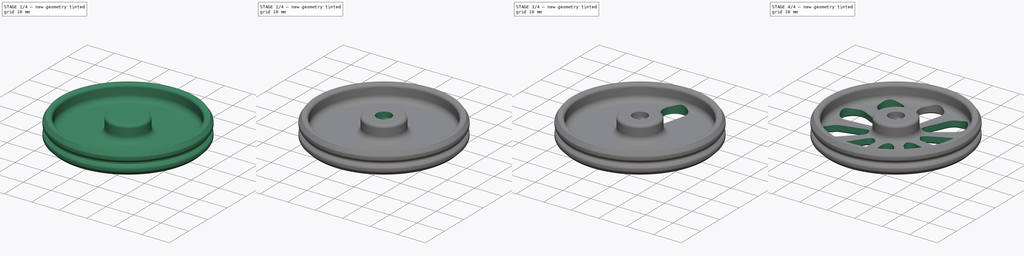
[diagram: build sequence overview — one tinted view per stage of 4, left to right]
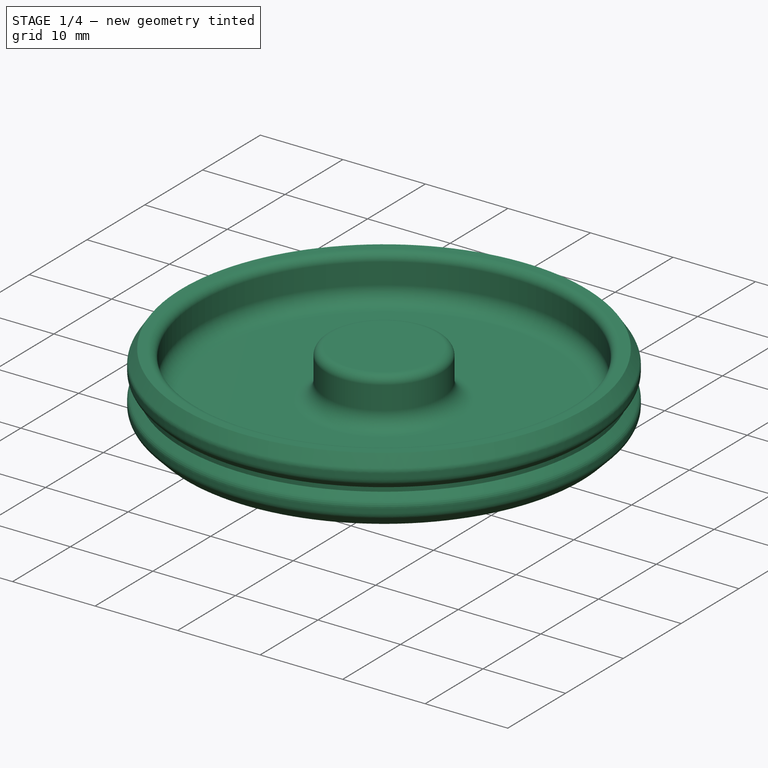
[diagram: stage 1 of 4 — iso view after this stage's code; geometry added in this stage tinted green]
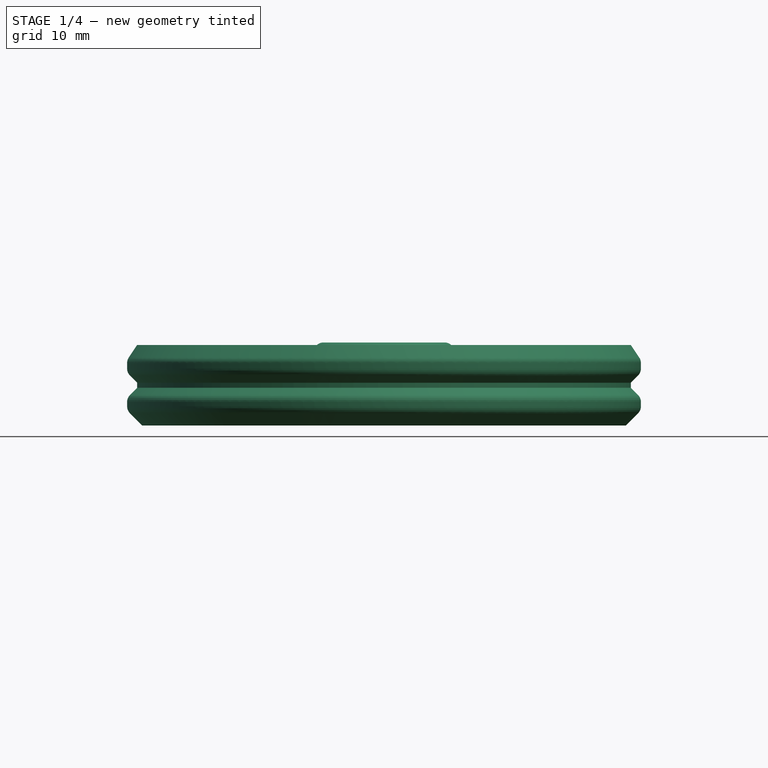
[diagram: stage 1 of 4 — front view after this stage's code; geometry added in this stage tinted green]
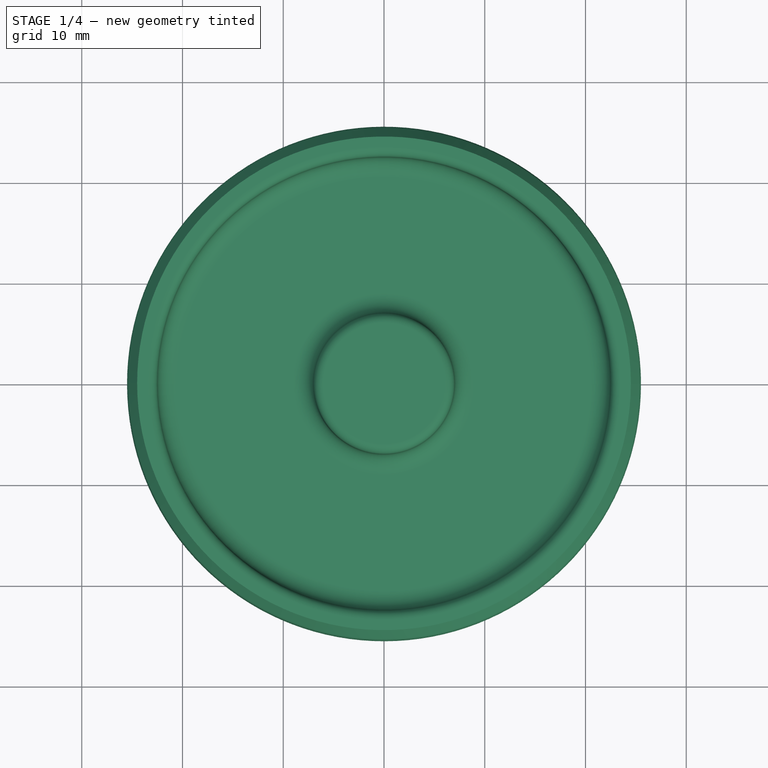
[diagram: stage 1 of 4 — top view after this stage's code; geometry added in this stage tinted green]
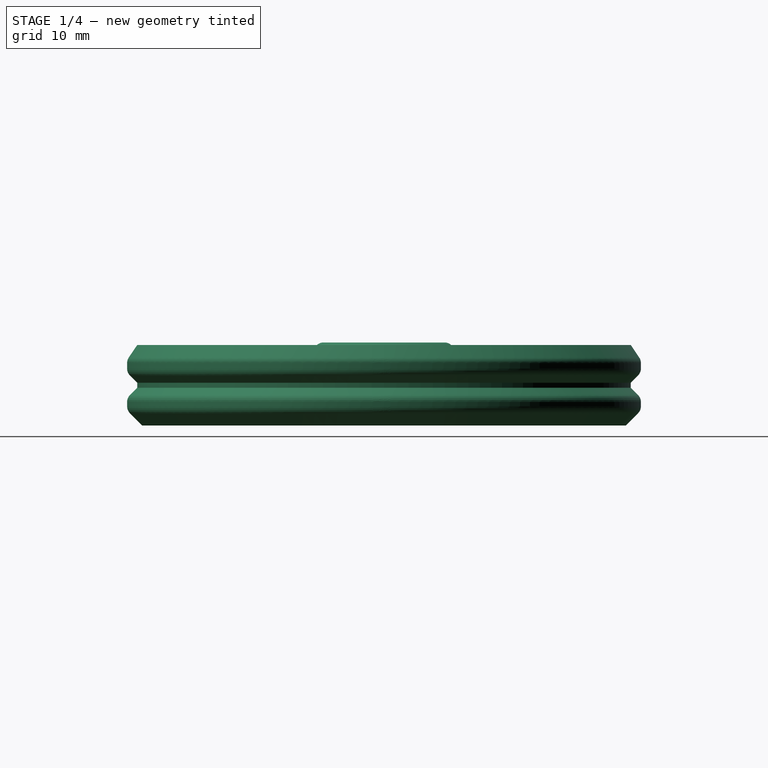
[diagram: stage 1 of 4 — right view after this stage's code; geometry added in this stage tinted green]
FCSTD DOCUMENT  (FreeCAD 0.16R6712 (Git))
Label: rueda_d
License: All rights reserved
LicenseURL: http://en.wikipedia.org/wiki/All_rights_reserved
objects: Sketcher::SketchObject×4, PartDesign::Pocket×3, PartDesign::Fillet×2, Part::Cylinder×1, PartDesign::Revolution×1, Part::Cut×1, PartDesign::PolarPattern×1, Part::Chamfer×1
note: 18 computed .brp shape members not serialized (recipe doc carries the construction recipe); baked Part::Feature solids carry a one-line shape summary decoded from their .brp

FEATURE [PartDesign::Revolution] Revolution
  Angle = 360
  Axis = (0,0,1)
  Base = (0,0,0)
  Placement = pos=(0,0,0) rot=(1,0,0;1.5708rad)
  ReferenceAxis = -> Sketch [V_Axis]
  Reversed = true
  Sketch = -> Sketch
FEATURE [PartDesign::Fillet] Fillet
  Base = -> Revolution [Edge5,Edge7,Edge13,Edge15]
  Placement = pos=(0,0,0) rot=(1,0,0;1.5708rad)
  Radius = 1
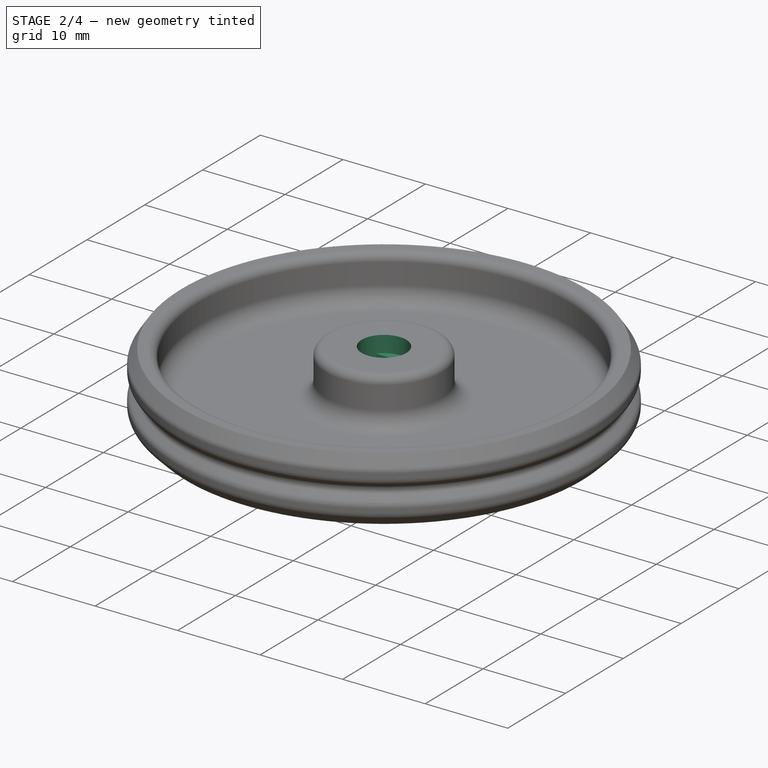
[diagram: stage 2 of 4 — iso view after this stage's code; geometry added in this stage tinted green]
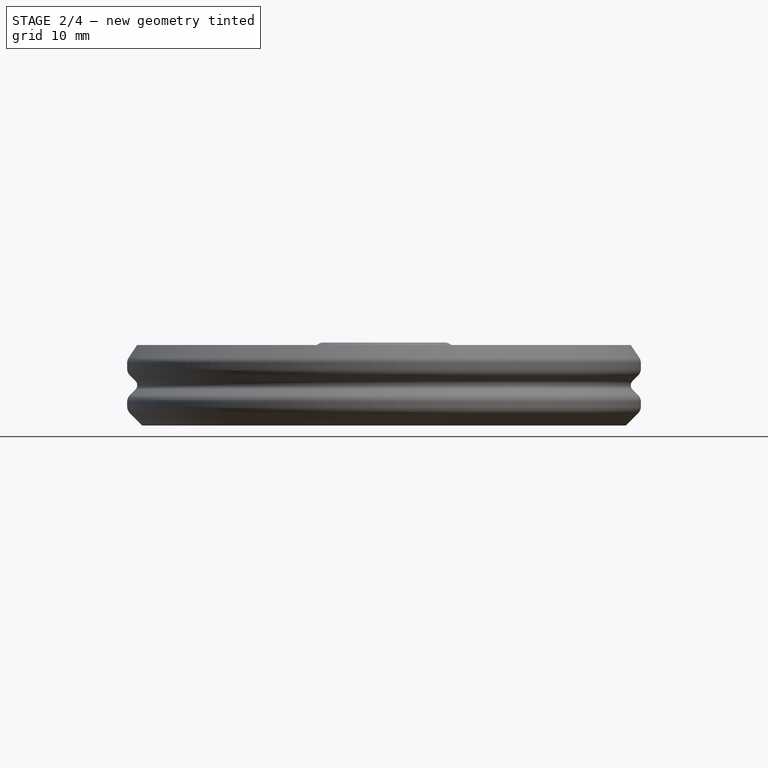
[diagram: stage 2 of 4 — front view after this stage's code; geometry added in this stage tinted green]
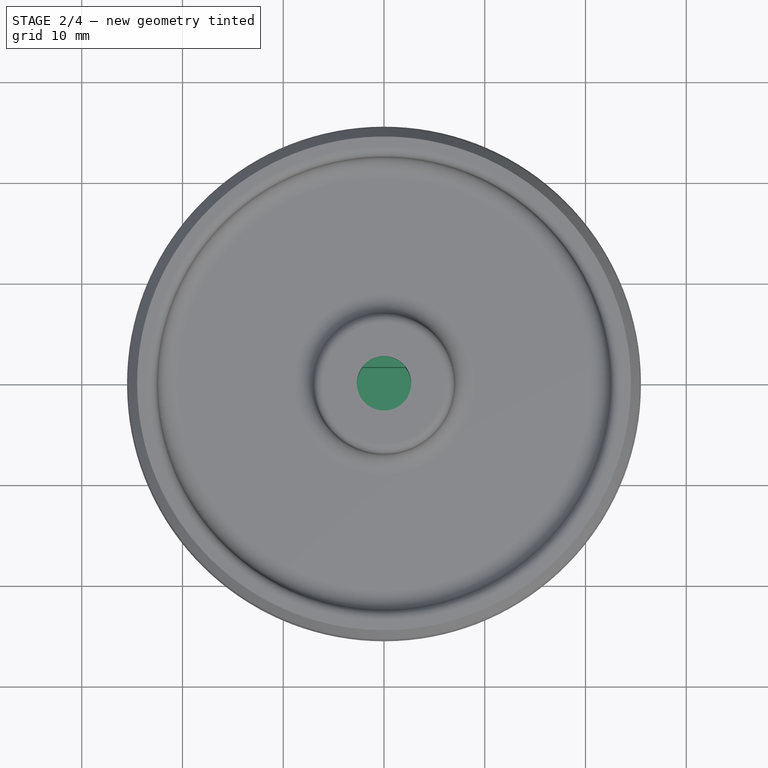
[diagram: stage 2 of 4 — top view after this stage's code; geometry added in this stage tinted green]
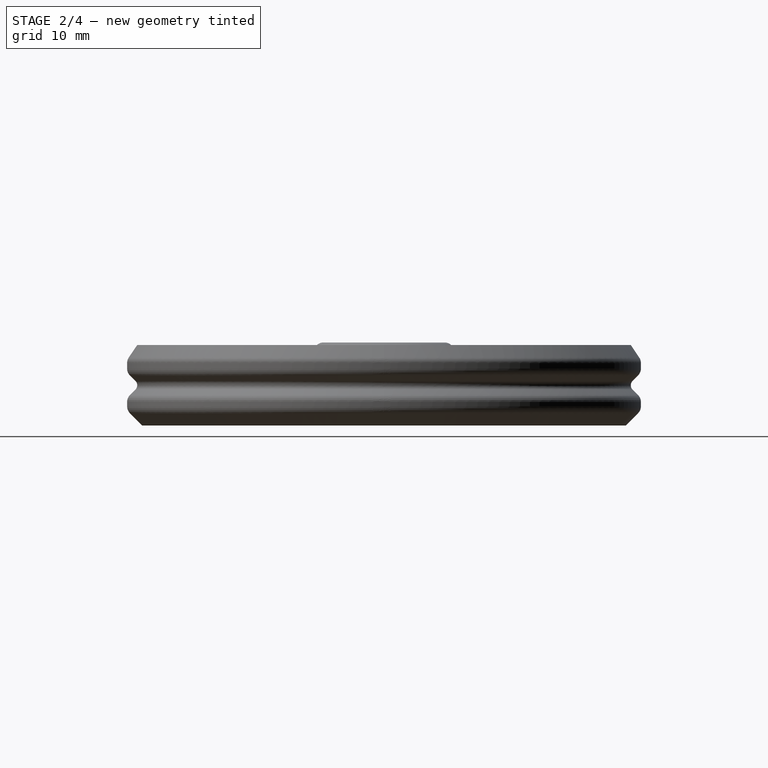
[diagram: stage 2 of 4 — right view after this stage's code; geometry added in this stage tinted green]
FEATURE [PartDesign::Fillet] Fillet001
  Base = -> Fillet [Edge12,Edge11]
  Placement = pos=(0,0,0) rot=(1,0,0;1.5708rad)
  Radius = 0.5
FEATURE [Sketcher::SketchObject] Sketch001
  Placement = pos=(0,0,8.25) rot=(0,0,1;3.14159rad)
  Support = -> Fillet001 [Face23]
  sketch-geometry (4):
    g0: LineSegment StartX=-2.13717 StartY=1.65 StartZ=0 EndX=2.13717 EndY=1.65 EndZ=0
    g1: LineSegment StartX=-2.13717 StartY=-1.65 StartZ=0 EndX=2.13717 EndY=-1.65 EndZ=0
    g2: ArcOfCircle CenterX=0 CenterY=0 CenterZ=0 NormalX=0 NormalY=0 NormalZ=1 Radius=2.7 StartAngle=2.48413 EndAngle=3.79906
    g3: ArcOfCircle CenterX=0 CenterY=0 CenterZ=0 NormalX=0 NormalY=0 NormalZ=1 Radius=2.7 StartAngle=5.62572 EndAngle=6.94065
  constraints (12):
    c: Horizontal(g0)
    c: Horizontal(g1)
    c: Coincident(g2,g-1)
    c: Coincident(g2,g0)
    c: Coincident(g2,g1)
    c: Coincident(g3,g-1)
    c: Coincident(g3,g0)
    c: Coincident(g3,g1)
    c: Equal(g2,g3)
    c: Radius(g2) = 2.7
    c: Symmetric(g0,g1,g-1)
    c: DistanceY(g-1,g0) = 1.65
FEATURE [PartDesign::Pocket] Pocket
  Length = 8
  Placement = pos=(0,0,0) rot=(1,0,0;1.5708rad)
  Sketch = -> Sketch001
  Type = 0
FEATURE [Sketcher::SketchObject] Sketch002
  ExternalGeometry = -> [Pocket]
  Placement = pos=(0,0,8.25) rot=(0,0,1;3.14159rad)
  Support = -> Pocket [Face23]
  sketch-geometry (1):
    g0: Circle CenterX=0 CenterY=0 CenterZ=0 NormalX=0 NormalY=0 NormalZ=1 Radius=2.7
  constraints (2):
    c: Coincident(g0,g-1)
    c: PointOnObject(g-3,g0)
FEATURE [PartDesign::Pocket] Pocket001
  Length = 2
  Placement = pos=(0,0,0) rot=(1,0,0;1.5708rad)
  Sketch = -> Sketch002
  Type = 0
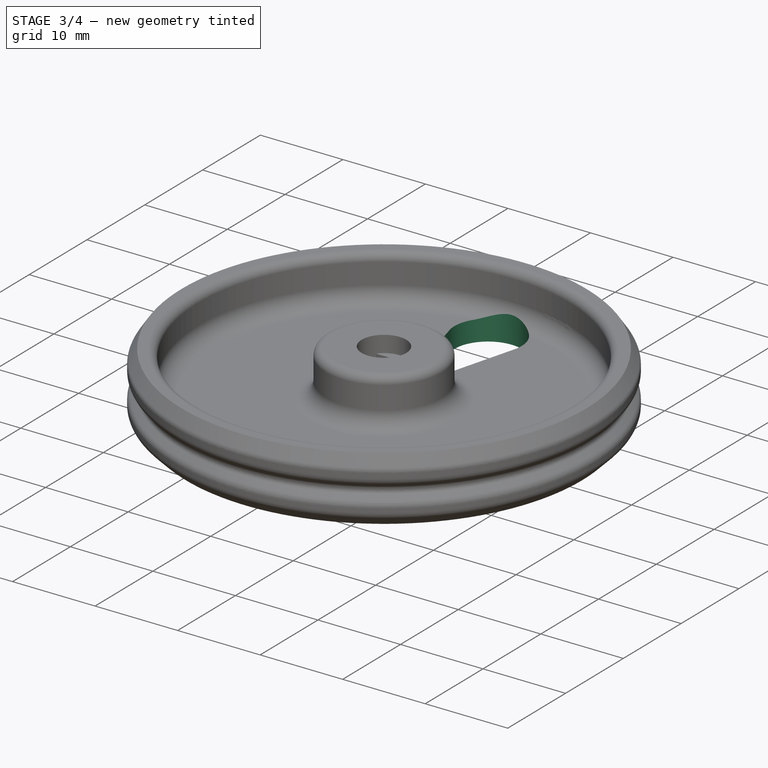
[diagram: stage 3 of 4 — iso view after this stage's code; geometry added in this stage tinted green]
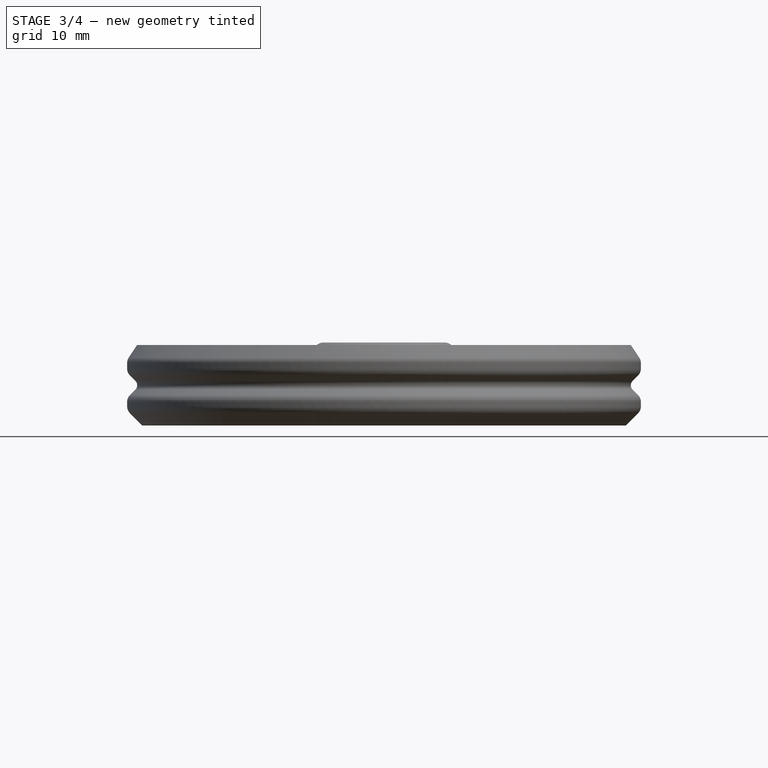
[diagram: stage 3 of 4 — front view after this stage's code; geometry added in this stage tinted green]
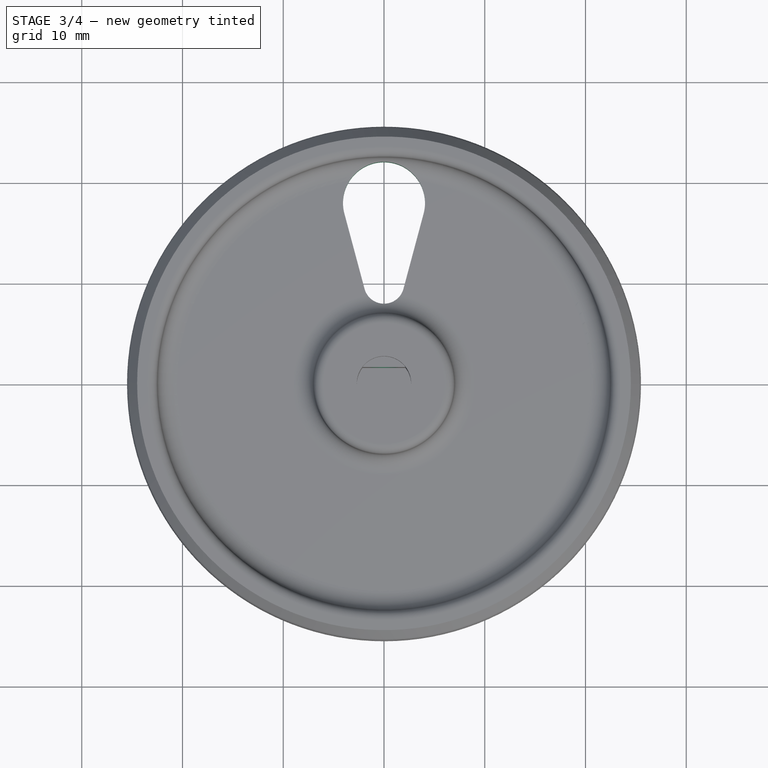
[diagram: stage 3 of 4 — top view after this stage's code; geometry added in this stage tinted green]
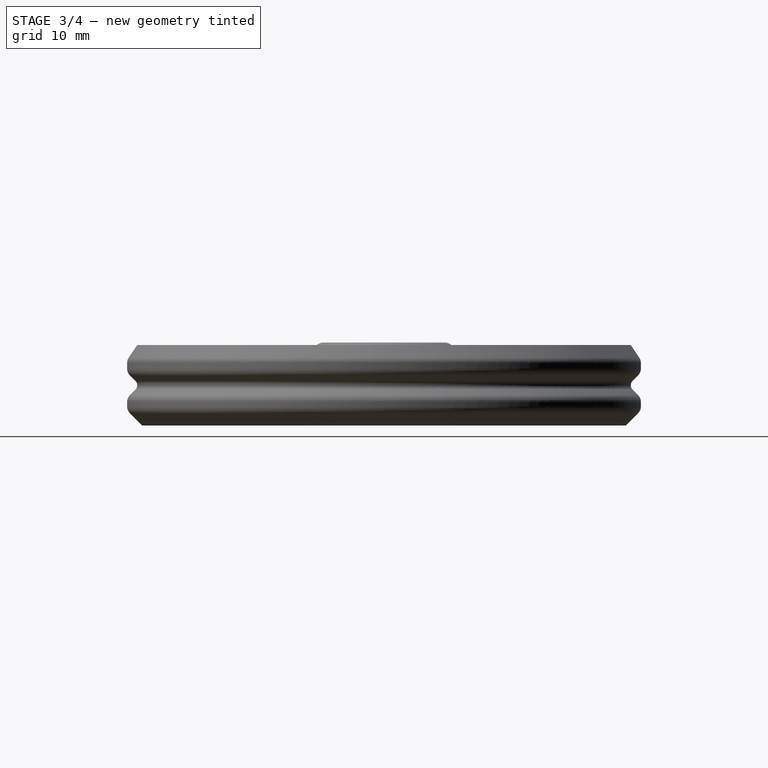
[diagram: stage 3 of 4 — right view after this stage's code; geometry added in this stage tinted green]
FEATURE [Sketcher::SketchObject] Sketch
  Placement = pos=(0,0,0) rot=(1,0,0;1.5708rad)
  sketch-geometry (18):
    g0: LineSegment StartX=24 StartY=0 StartZ=0 EndX=25.5 EndY=1.5 EndZ=0
    g1: LineSegment StartX=25.5 StartY=1.5 StartZ=0 EndX=25.5 EndY=2.75 EndZ=0
    g2: LineSegment StartX=25.5 StartY=2.75 StartZ=0 EndX=24.5 EndY=3.75 EndZ=0
    g3: LineSegment StartX=24.5 StartY=3.75 StartZ=0 EndX=24.5 EndY=4.25 EndZ=0
    g4: LineSegment StartX=24.5 StartY=4.25 StartZ=0 EndX=25.5 EndY=5.25 EndZ=0
    g5: LineSegment StartX=25.5 StartY=5.25 StartZ=0 EndX=25.5 EndY=6.5 EndZ=0
    g6: LineSegment StartX=25.5 StartY=6.5 StartZ=0 EndX=24.5 EndY=8 EndZ=0
    g7: LineSegment StartX=24 StartY=0 StartZ=0 EndX=0 EndY=0 EndZ=0
    g8: LineSegment StartX=0 StartY=0 StartZ=0 EndX=0 EndY=8.25 EndZ=0
    g9: LineSegment StartX=0 StartY=8.25 StartZ=0 EndX=6 EndY=8.25 EndZ=0
    g10: ArcOfCircle CenterX=6 CenterY=7.25 CenterZ=0 NormalX=0 NormalY=0 NormalZ=1 Radius=1 StartAngle=6.28317 EndAngle=7.85398
    g11: ArcOfCircle CenterX=9 CenterY=4.5 CenterZ=0 NormalX=0 NormalY=0 NormalZ=1 Radius=2 StartAngle=3.14159 EndAngle=4.71239
    g12: ArcOfCircle CenterX=20.5 CenterY=4.5 CenterZ=0 NormalX=0 NormalY=0 NormalZ=1 Radius=2 StartAngle=4.71239 EndAngle=6.28319
    g13: ArcOfCircle CenterX=23.5 CenterY=7 CenterZ=0 NormalX=0 NormalY=0 NormalZ=1 Radius=1 StartAngle=1.5708 EndAngle=3.14159
    g14: LineSegment StartX=23.5 StartY=8 StartZ=0 EndX=24.5 EndY=8 EndZ=0
    g15: LineSegment StartX=22.5 StartY=7 StartZ=0 EndX=22.5 EndY=4.5 EndZ=0
    g16: LineSegment StartX=9 StartY=2.5 StartZ=0 EndX=20.5 EndY=2.5 EndZ=0
    g17: LineSegment StartX=7 StartY=7.24999 StartZ=0 EndX=7 EndY=4.5 EndZ=0
  constraints (57):
    c: PointOnObject(g0,g-1)
    c: Coincident(g0,g1)
    c: Vertical(g1)
    c: Coincident(g1,g2)
    c: Coincident(g2,g3)
    c: Vertical(g3)
    c: Coincident(g3,g4)
    c: Coincident(g4,g5)
    c: Vertical(g5)
    c: Coincident(g5,g6)
    c: DistanceX(g0,g0) = 1.5
    c: DistanceY(g0,g0) = 1.5
    c: DistanceY(g1,g1) = 1.25
    c: DistanceX(g2,g1) = 1
    c: DistanceY(g1,g2) = 1
    c: DistanceY(g3,g4) = 1
    c: PointOnObject(g1,g5)
    c: DistanceY(g5,g5) = 1.25
    c: DistanceX(g6,g5) = 1
    c: DistanceY(g0,g6) = 8
    c: DistanceX(g-1,g0) = 24
    c: Coincident(g0,g7)
    c: Coincident(g7,g-1)
    c: Coincident(g8,g-1)
    c: Vertical(g8)
    c: DistanceY(g8,g8) = 8.25
    c: Coincident(g9,g8)
    c: Horizontal(g9)
    c: Coincident(g10,g9)
    c: Radius(g13) = 1
    c: Coincident(g14,g13)
    c: Coincident(g14,g6)
    c: Horizontal(g14)
    c: DistanceX(g14,g14) = 1
    c: Tangent(g13,g14)
    c: Coincident(g15,g13)
    c: Coincident(g15,g12)
    c: Vertical(g15)
    c: Tangent(g15,g13)
    c: Tangent(g12,g15)
    c: Coincident(g16,g11)
    c: Coincident(g16,g12)
    c: Horizontal(g16)
    c: Tangent(g12,g16)
    c: DistanceY(g0,g12) = 2.5
    c: Tangent(g10,g9)
    c: Radius(g10) = 1
    c: Coincident(g17,g10)
    c: Coincident(g17,g11)
    c: Vertical(g17)
    c: Tangent(g11,g16)
    c: Tangent(g11,g17)
    c: Tangent(g10,g17)
    c: DistanceX(g8,g10) = 7
    c: Radius(g11) = 2
    c: Radius(g12) = 2
    c: DistanceY(g3,g3) = 0.5
FEATURE [Part::Cylinder] Cylinder  label="Cilindro"
  Angle = 360
  Height = 23
  Placement = pos=(0,0,4.5) rot=(0,0.843391,0.5373;3.14159rad)
  Radius = 1.4
FEATURE [Part::Cut] Cut
  Base = -> Pocket001
  Tool = -> Cylinder
FEATURE [Sketcher::SketchObject] Sketch003
  ExternalGeometry = -> [Cut]
  Placement = pos=(0,0,2.5) rot=(0,0,1;0rad)
  Support = -> Cut [Face14]
  sketch-geometry (7):
    g0: LineSegment [constr] StartX=-37.6188 StartY=30 StartZ=0 EndX=0 EndY=0 EndZ=0
    g1: LineSegment [constr] StartX=0 StartY=0 StartZ=0 EndX=37.6188 EndY=30 EndZ=0
    g2: LineSegment [constr] StartX=37.6188 StartY=30 StartZ=0 EndX=-37.6188 EndY=30 EndZ=0
    g3: ArcOfCircle CenterX=0 CenterY=10 CenterZ=0 NormalX=0 NormalY=0 NormalZ=1 Radius=2 StartAngle=3.4034 EndAngle=6.02138
    g4: ArcOfCircle CenterX=0 CenterY=18 CenterZ=0 NormalX=0 NormalY=0 NormalZ=1 Radius=4.07055 StartAngle=6.02139 EndAngle=9.68657
    g5: LineSegment StartX=-3.93186 StartY=16.9465 StartZ=0 EndX=-1.93185 EndY=9.48235 EndZ=0
    g6: LineSegment StartX=1.93185 StartY=9.48235 StartZ=0 EndX=3.93186 EndY=16.9465 EndZ=0
  constraints (22):
    c: Coincident(g0,g-1)
    c: Coincident(g0,g1)
    c: Coincident(g1,g2)
    c: Coincident(g2,g0)
    c: Horizontal(g2)
    c: Symmetric(g0,g1,g-2)
    c: DistanceY(g-1,g0) = 30
    c: Angle(g1,g0) = 1.7952
    c: PointOnObject(g4,g-2)
    c: Coincident(g5,g4)
    c: Coincident(g5,g3)
    c: Coincident(g6,g3)
    c: Tangent(g6,g4)
    c: Tangent(g5,g4)
    c: Tangent(g6,g3)
    c: Tangent(g3,g5)
    c: PointOnObject(g3,g-2)
    c: DistanceY(g-1,g3) = 10
    c: Radius(g3) = 2
    c: Angle(g6,g5) = 0.523599
    c: Coincident(g4,g6)
    c: DistanceY(g3,g4) = 8
FEATURE [PartDesign::Pocket] Pocket002
  Length = 5
  Midplane = true
  Sketch = -> Sketch003
  Type = 1
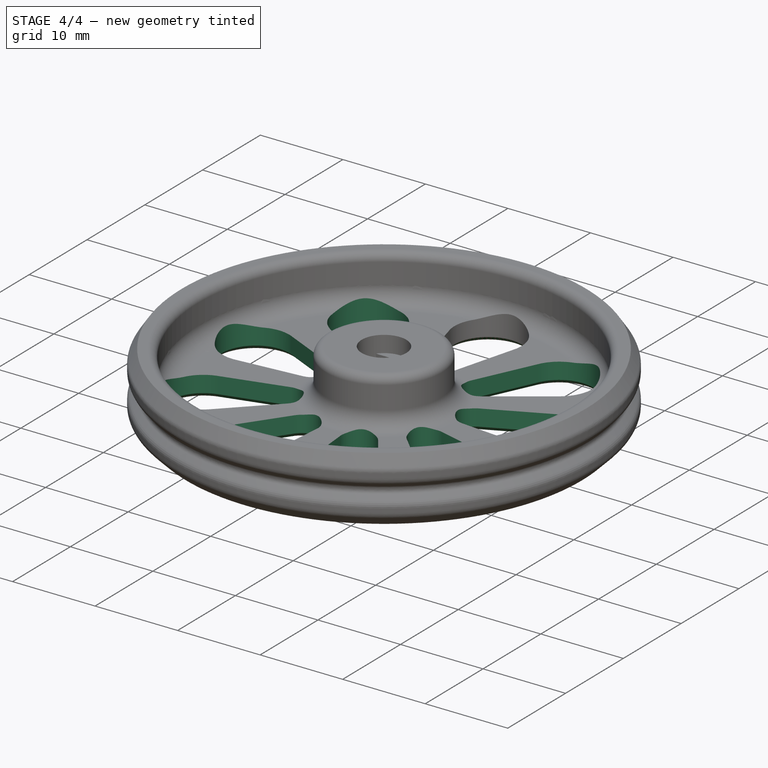
[diagram: stage 4 of 4 — iso view after this stage's code; geometry added in this stage tinted green]
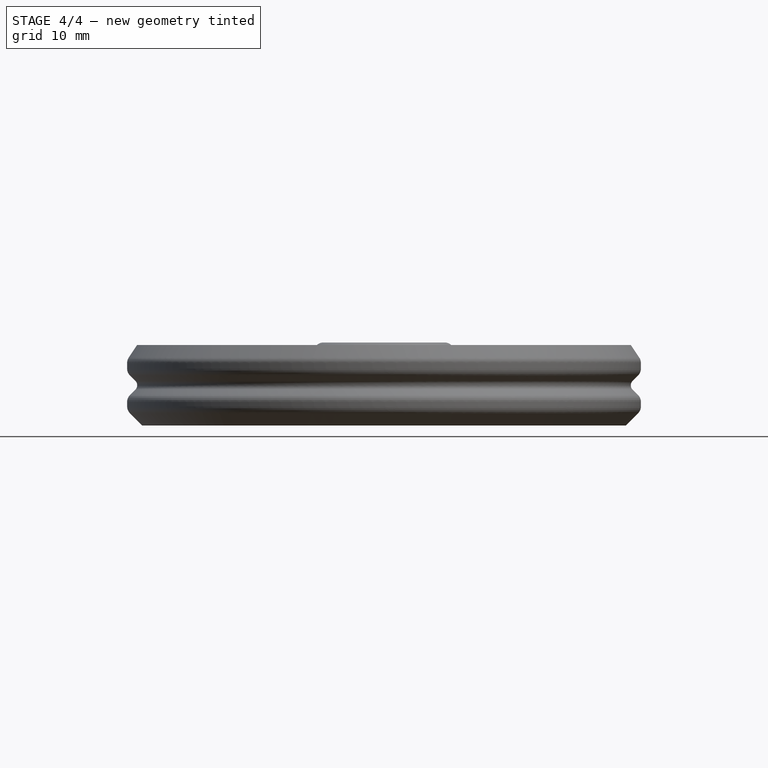
[diagram: stage 4 of 4 — front view after this stage's code; geometry added in this stage tinted green]
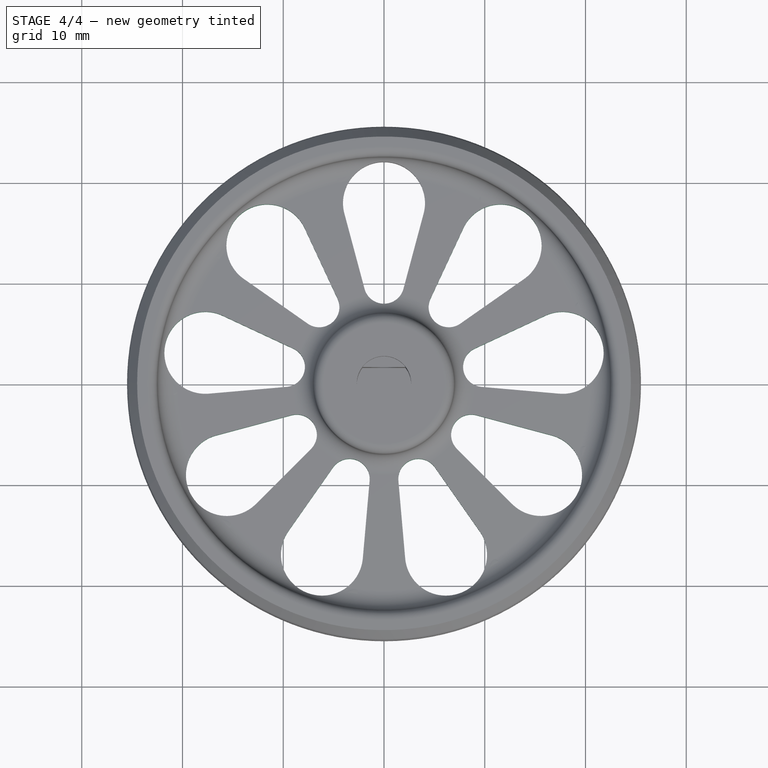
[diagram: stage 4 of 4 — top view after this stage's code; geometry added in this stage tinted green]
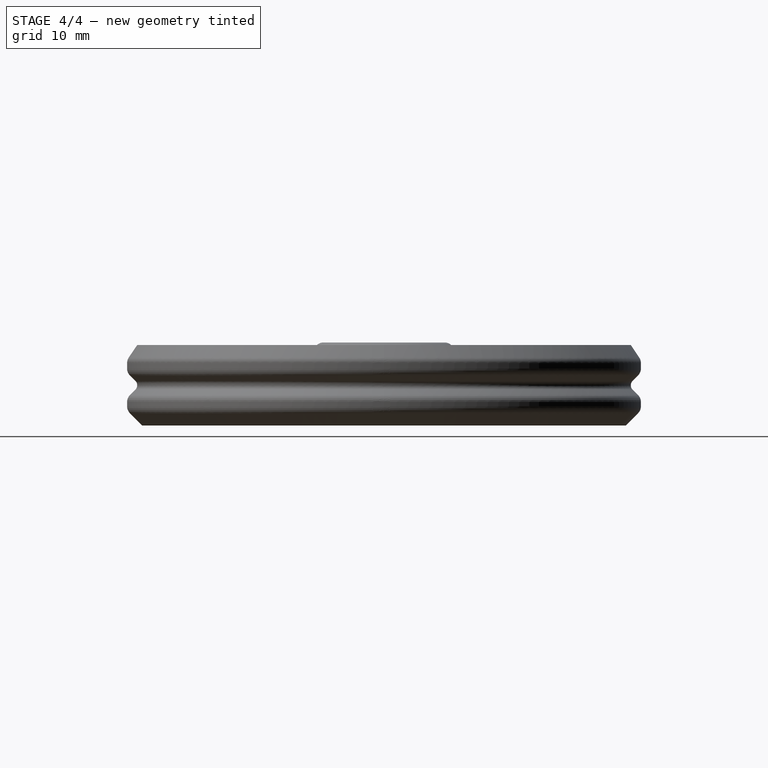
[diagram: stage 4 of 4 — right view after this stage's code; geometry added in this stage tinted green]
FEATURE [PartDesign::PolarPattern] PolarPattern
  Angle = 360
  Axis = -> Sketch003 [N_Axis]
  Occurrences = 9
  Originals = -> [Pocket002]
FEATURE [Part::Chamfer] Chamfer
  Base = -> PolarPattern
  Edges = 38 edges r=0.5: [Edge23,Edge31,Edge32,Edge33,Edge34,Edge35,Edge36,Edge37,Edge38,Edge39,Edge40,Edge41,Edge42,Edge43,Edge44,Edge45,Edge46,Edge47,Edge48,Edge49,Edge50,Edge51,Edge52,Edge53,Edge54,Edge55,Edge56,Edge57,Edge58,Edge59,Edge60,Edge61,Edge62,Edge63,Edge64,Edge65,Edge66,Edge67]
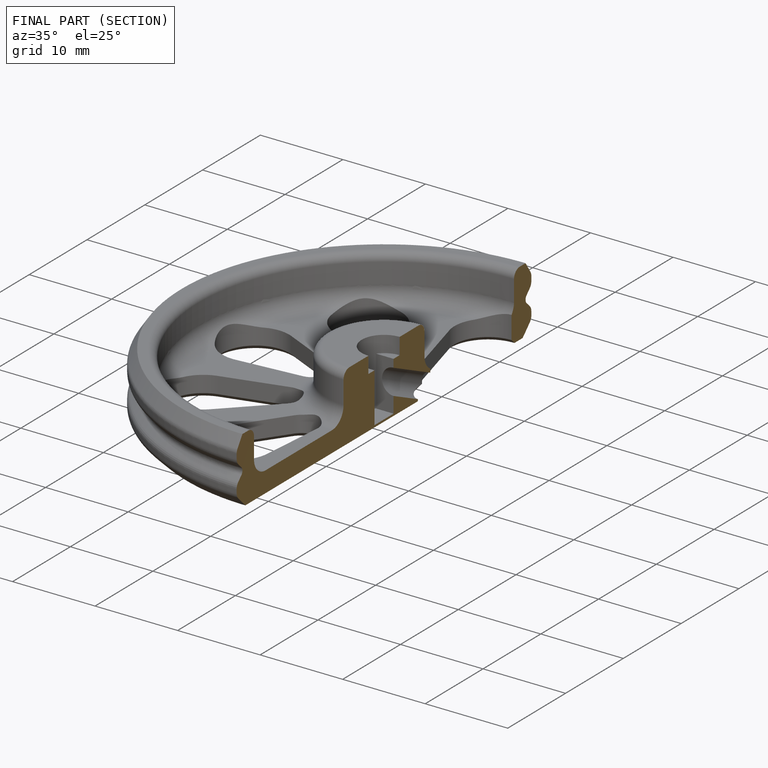
[diagram: finished part — half-section view (interior)]
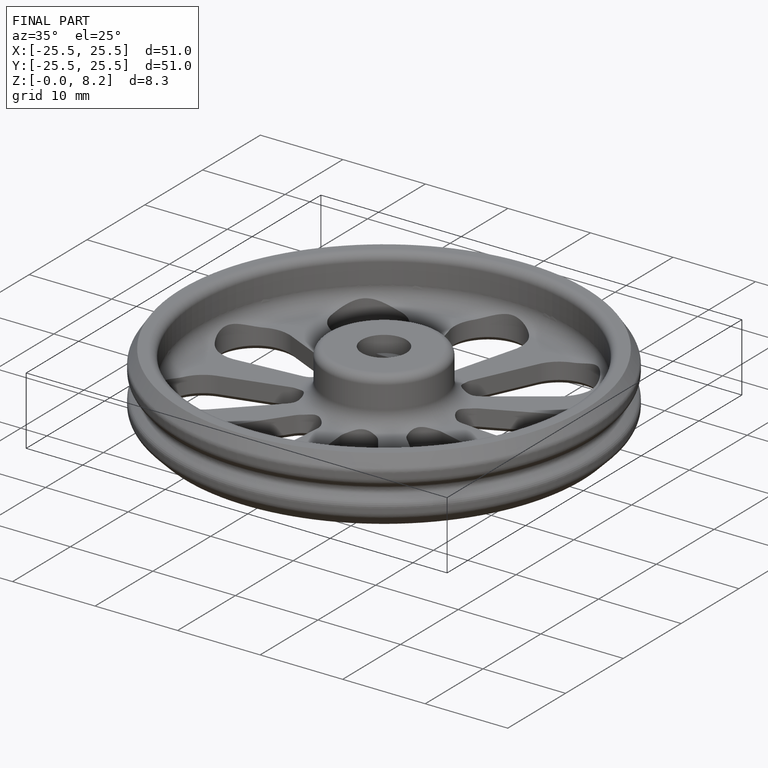
[diagram: finished part — iso view with bounding-box wireframe]
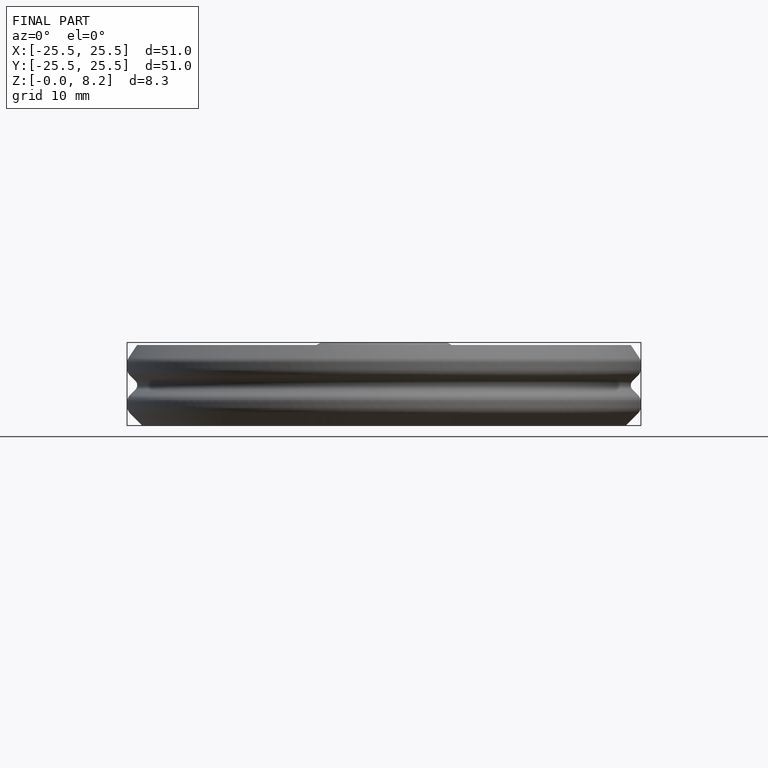
[diagram: finished part — front view with bounding-box wireframe]
